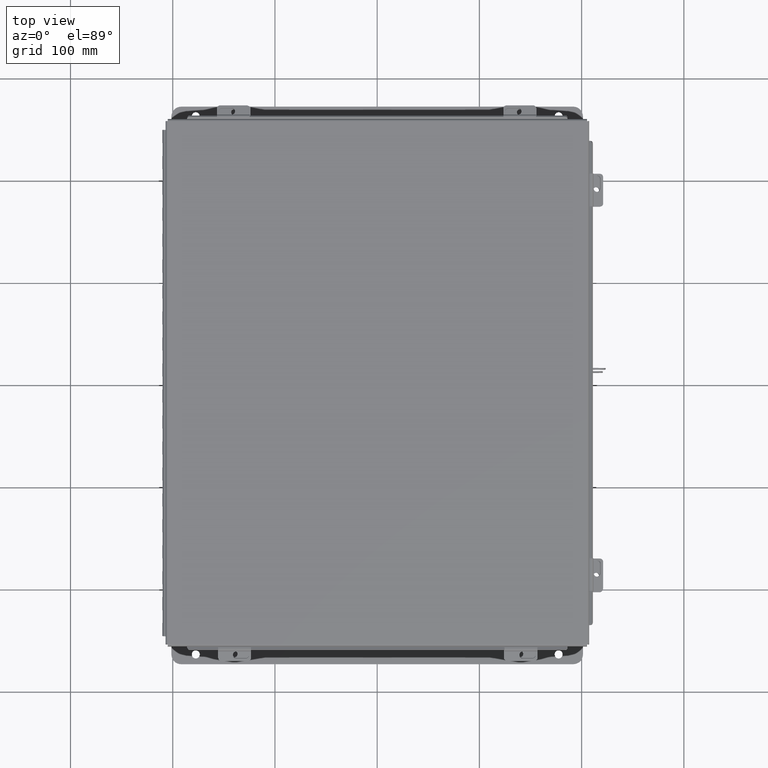
[diagram: clean part render]
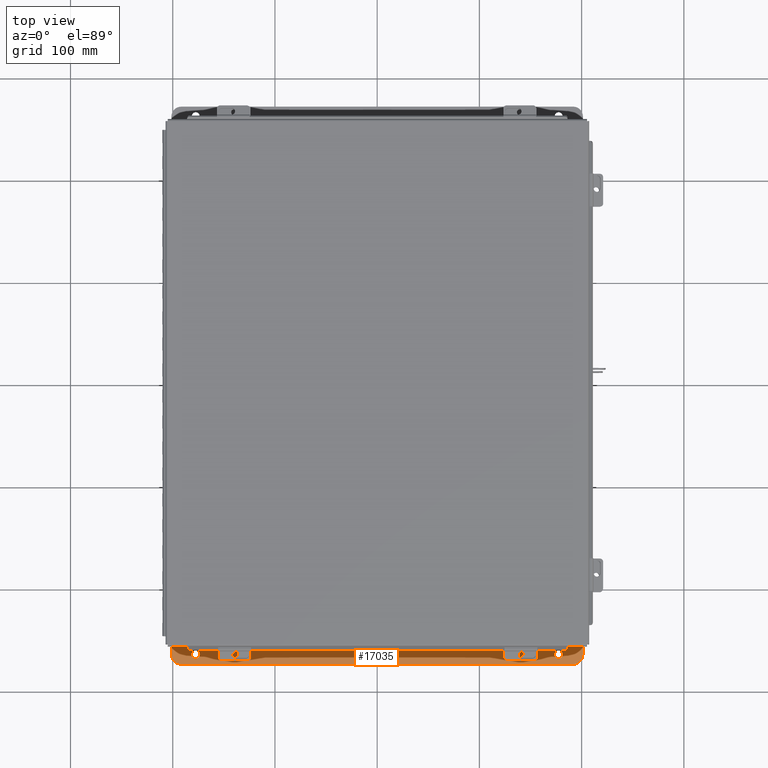
[diagram: same view with one face highlighted and labeled with its STEP entity id]
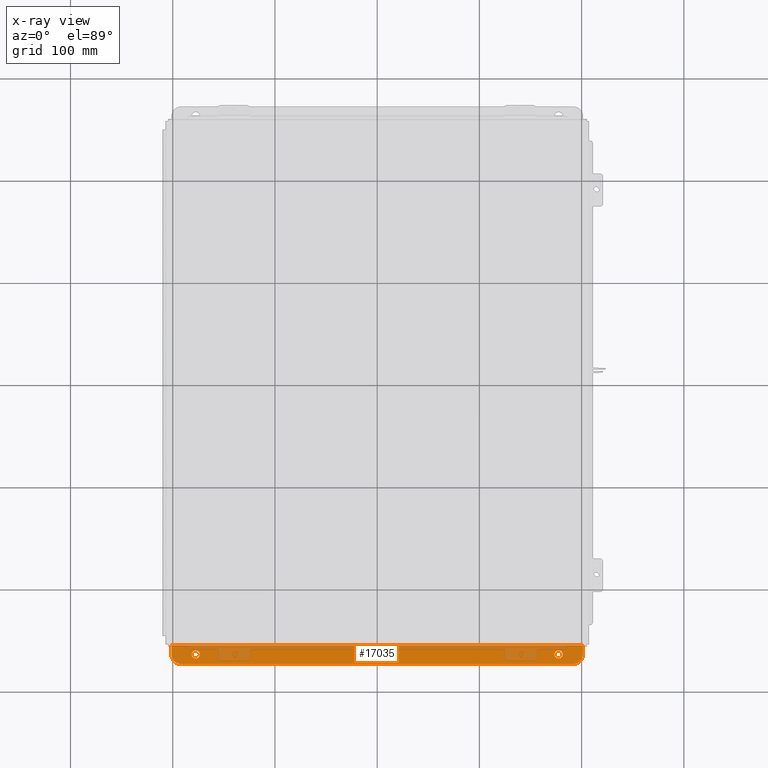
[diagram: x-ray of the same camera — body ghosted, the highlighted face saturated]
A machine part, top view. The second image highlights one B-rep face of the part: STEP entity #17035.
The next image is the same camera in x-ray: the body ghosted, the highlighted face saturated — about 34% of this face is hidden behind the body in this view.
In plain terms, the highlighted planar face has unit normal (0, -0, 1).
Its self-contained STEP definition (entity closure, byte-faithful):
#124 = EDGE_CURVE ( 'NONE', #7940, #176, #12433, .T. ) ;
#127 = AXIS2_PLACEMENT_3D ( 'NONE', #1991, #14022, #3735 ) ;
#176 = VERTEX_POINT ( 'NONE', #14654 ) ;
#184 = AXIS2_PLACEMENT_3D ( 'NONE', #3482, #15532, #5207 ) ;
#295 = VERTEX_POINT ( 'NONE', #6626 ) ;
#573 = CARTESIAN_POINT ( 'NONE',  ( -7.550299999999992000, 0.7377999999999989000, -3.112300000000003000 ) ) ;
#1151 = ORIENTED_EDGE ( 'NONE', *, *, #16715, .T. ) ;
#1508 = VECTOR ( 'NONE', #1798, 39.37007874015748100 ) ;
#1798 = DIRECTION ( 'NONE',  ( 1.000000000000000000, 4.910036603141682400E-031, -0.0000000000000000000 ) ) ;
#1876 = ORIENTED_EDGE ( 'NONE', *, *, #21468, .F. ) ;
#1989 = LINE ( 'NONE', #17605, #10594 ) ;
#1991 = CARTESIAN_POINT ( 'NONE',  ( 6.987800000000008000, 0.3628000000000008400, -3.112300000000001200 ) ) ;
#2122 = EDGE_LOOP ( 'NONE', ( #1151, #18092 ) ) ;
#2160 = CARTESIAN_POINT ( 'NONE',  ( 7.925300000000007100, 0.3628000000000008400, -3.112300000000005600 ) ) ;
#2770 = EDGE_CURVE ( 'NONE', #3990, #9303, #17798, .T. ) ;
#3223 = AXIS2_PLACEMENT_3D ( 'NONE', #7612, #19742, #9315 ) ;
#3470 = CARTESIAN_POINT ( 'NONE',  ( -6.987799999999992900, 0.3627999999999986800, -3.112300000000001200 ) ) ;
#3482 = CARTESIAN_POINT ( 'NONE',  ( -7.550299999999992000, 0.3627999999999986800, -3.112300000000001200 ) ) ;
#3735 = DIRECTION ( 'NONE',  ( 0.0000000000000000000, -1.000000000000000000, 3.502369222646487400E-015 ) ) ;
#3990 = VERTEX_POINT ( 'NONE', #20549 ) ;
#4751 = EDGE_CURVE ( 'NONE', #6241, #22049, #15259, .T. ) ;
#4783 = EDGE_LOOP ( 'NONE', ( #20630, #11556, #10454, #13940, #1876, #7011 ) ) ;
#4825 = DIRECTION ( 'NONE',  ( -1.000000000000000000, -4.910036603141682400E-031, 0.0000000000000000000 ) ) ;
#4893 = ORIENTED_EDGE ( 'NONE', *, *, #20883, .T. ) ;
#5198 = DIRECTION ( 'NONE',  ( 0.0000000000000000000, -1.000000000000000000, 4.370956789862820400E-015 ) ) ;
#5207 = DIRECTION ( 'NONE',  ( 0.0000000000000000000, -1.000000000000000000, 4.370956789862820400E-015 ) ) ;
#5479 = FACE_BOUND ( 'NONE', #13029, .T. ) ;
#5824 = CARTESIAN_POINT ( 'NONE',  ( 7.550300000000007100, 0.3628000000000008400, -3.112300000000001200 ) ) ;
#5871 = CARTESIAN_POINT ( 'NONE',  ( -7.925299999999992000, 0.3627999999999986800, -3.112300000000005600 ) ) ;
#6241 = VERTEX_POINT ( 'NONE', #573 ) ;
#6386 = EDGE_CURVE ( 'NONE', #6915, #22049, #7175, .T. ) ;
#6626 = CARTESIAN_POINT ( 'NONE',  ( 6.987800000000008000, 0.5188000000000010400, -3.112300000000001600 ) ) ;
#6915 = VERTEX_POINT ( 'NONE', #2160 ) ;
#6967 = AXIS2_PLACEMENT_3D ( 'NONE', #19662, #9236, #21393 ) ;
#7011 = ORIENTED_EDGE ( 'NONE', *, *, #6386, .T. ) ;
#7175 = CIRCLE ( 'NONE', #18861, 0.3750000000000000600 ) ;
#7429 = CIRCLE ( 'NONE', #127, 0.1560000000000001700 ) ;
#7612 = CARTESIAN_POINT ( 'NONE',  ( -6.987799999999992900, 0.3627999999999986800, -3.112300000000001200 ) ) ;
#7940 = VERTEX_POINT ( 'NONE', #13524 ) ;
#8503 = CARTESIAN_POINT ( 'NONE',  ( 7.550300000000007100, 0.7378000000000011200, -3.112300000000003000 ) ) ;
#8546 = CARTESIAN_POINT ( 'NONE',  ( -7.925299999999992000, 0.7377999999999989000, -3.112300000000003000 ) ) ;
#8647 = ORIENTED_EDGE ( 'NONE', *, *, #19933, .T. ) ;
#8678 = AXIS2_PLACEMENT_3D ( 'NONE', #3470, #14170, #12758 ) ;
#9236 = DIRECTION ( 'NONE',  ( -0.0000000000000000000, -3.702694488566362300E-015, -1.000000000000000000 ) ) ;
#9303 = VERTEX_POINT ( 'NONE', #5871 ) ;
#9315 = DIRECTION ( 'NONE',  ( 0.0000000000000000000, -1.000000000000000000, 3.502369222646487400E-015 ) ) ;
#9821 = CARTESIAN_POINT ( 'NONE',  ( 7.925300000000007100, 0.7378000000000011200, -3.112300000000003000 ) ) ;
#9875 = AXIS2_PLACEMENT_3D ( 'NONE', #20560, #10133, #22296 ) ;
#10133 = DIRECTION ( 'NONE',  ( 0.0000000000000000000, 3.702694488566362300E-015, 1.000000000000000000 ) ) ;
#10454 = ORIENTED_EDGE ( 'NONE', *, *, #2770, .F. ) ;
#10594 = VECTOR ( 'NONE', #12440, 39.37007874015748100 ) ;
#10789 = VERTEX_POINT ( 'NONE', #16964 ) ;
#11556 = ORIENTED_EDGE ( 'NONE', *, *, #16474, .T. ) ;
#11899 = CIRCLE ( 'NONE', #6967, 0.1560000000000001700 ) ;
#11902 = CIRCLE ( 'NONE', #3223, 0.1560000000000001700 ) ;
#12433 = CIRCLE ( 'NONE', #8678, 0.1560000000000001700 ) ;
#12440 = DIRECTION ( 'NONE',  ( -4.919856193148104900E-031, -1.000000000000000000, 3.702694488566362300E-015 ) ) ;
#12758 = DIRECTION ( 'NONE',  ( 0.0000000000000000000, -1.000000000000000000, 3.502369222646487400E-015 ) ) ;
#13029 = EDGE_LOOP ( 'NONE', ( #8647, #4893 ) ) ;
#13390 = CARTESIAN_POINT ( 'NONE',  ( 7.925300000000007100, 0.01300000000000010700, -3.112299999999999800 ) ) ;
#13501 = PLANE ( 'NONE',  #9875 ) ;
#13524 = CARTESIAN_POINT ( 'NONE',  ( -6.987799999999992900, 0.2067999999999984900, -3.112300000000000700 ) ) ;
#13727 = EDGE_CURVE ( 'NONE', #18916, #3990, #20487, .T. ) ;
#13940 = ORIENTED_EDGE ( 'NONE', *, *, #13727, .F. ) ;
#14022 = DIRECTION ( 'NONE',  ( -0.0000000000000000000, -3.702694488566362300E-015, -1.000000000000000000 ) ) ;
#14170 = DIRECTION ( 'NONE',  ( -0.0000000000000000000, -3.702694488566362300E-015, -1.000000000000000000 ) ) ;
#14235 = CARTESIAN_POINT ( 'NONE',  ( 7.925300000000007100, 0.01300000000000010700, -3.112299999999999800 ) ) ;
#14614 = FACE_BOUND ( 'NONE', #2122, .T. ) ;
#14654 = CARTESIAN_POINT ( 'NONE',  ( -6.987799999999992900, 0.5187999999999988200, -3.112300000000001600 ) ) ;
#15259 = LINE ( 'NONE', #9821, #1508 ) ;
#15532 = DIRECTION ( 'NONE',  ( 0.0000000000000000000, 3.702694488566362300E-015, 1.000000000000000000 ) ) ;
#16474 = EDGE_CURVE ( 'NONE', #6241, #9303, #20400, .T. ) ;
#16715 = EDGE_CURVE ( 'NONE', #176, #7940, #11902, .T. ) ;
#16964 = CARTESIAN_POINT ( 'NONE',  ( 6.987800000000008000, 0.2068000000000006800, -3.112300000000000700 ) ) ;
#17035 = ADVANCED_FACE ( 'NONE', ( #14614, #5479, #18694 ), #13501, .T. ) ;
#17605 = CARTESIAN_POINT ( 'NONE',  ( 7.925300000000007100, 0.0000000000000000000, -3.112299999999999800 ) ) ;
#17798 = LINE ( 'NONE', #8546, #18343 ) ;
#18092 = ORIENTED_EDGE ( 'NONE', *, *, #124, .T. ) ;
#18343 = VECTOR ( 'NONE', #21276, 39.37007874015748100 ) ;
#18694 = FACE_OUTER_BOUND ( 'NONE', #4783, .T. ) ;
#18861 = AXIS2_PLACEMENT_3D ( 'NONE', #5824, #21191, #5198 ) ;
#18916 = VERTEX_POINT ( 'NONE', #14235 ) ;
#19662 = CARTESIAN_POINT ( 'NONE',  ( 6.987800000000008000, 0.3628000000000008400, -3.112300000000001200 ) ) ;
#19742 = DIRECTION ( 'NONE',  ( -0.0000000000000000000, -3.702694488566362300E-015, -1.000000000000000000 ) ) ;
#19933 = EDGE_CURVE ( 'NONE', #295, #10789, #7429, .T. ) ;
#19942 = VECTOR ( 'NONE', #4825, 39.37007874015748100 ) ;
#20400 = CIRCLE ( 'NONE', #184, 0.3750000000000000600 ) ;
#20487 = LINE ( 'NONE', #13390, #19942 ) ;
#20549 = CARTESIAN_POINT ( 'NONE',  ( -7.925299999999992000, 0.01300000000000010700, -3.112299999999999800 ) ) ;
#20560 = CARTESIAN_POINT ( 'NONE',  ( -2.035385365534024800E-024, -1.092739197465705300E-014, -3.112299999999999800 ) ) ;
#20630 = ORIENTED_EDGE ( 'NONE', *, *, #4751, .F. ) ;
#20883 = EDGE_CURVE ( 'NONE', #10789, #295, #11899, .T. ) ;
#21191 = DIRECTION ( 'NONE',  ( 0.0000000000000000000, 3.702694488566362300E-015, 1.000000000000000000 ) ) ;
#21276 = DIRECTION ( 'NONE',  ( 4.919856193148104900E-031, 1.000000000000000000, -3.702694488566362300E-015 ) ) ;
#21393 = DIRECTION ( 'NONE',  ( 0.0000000000000000000, -1.000000000000000000, 3.502369222646487400E-015 ) ) ;
#21468 = EDGE_CURVE ( 'NONE', #6915, #18916, #1989, .T. ) ;
#22049 = VERTEX_POINT ( 'NONE', #8503 ) ;
#22296 = DIRECTION ( 'NONE',  ( -4.919856193148104900E-031, -1.000000000000000000, 3.702694488566362300E-015 ) ) ;